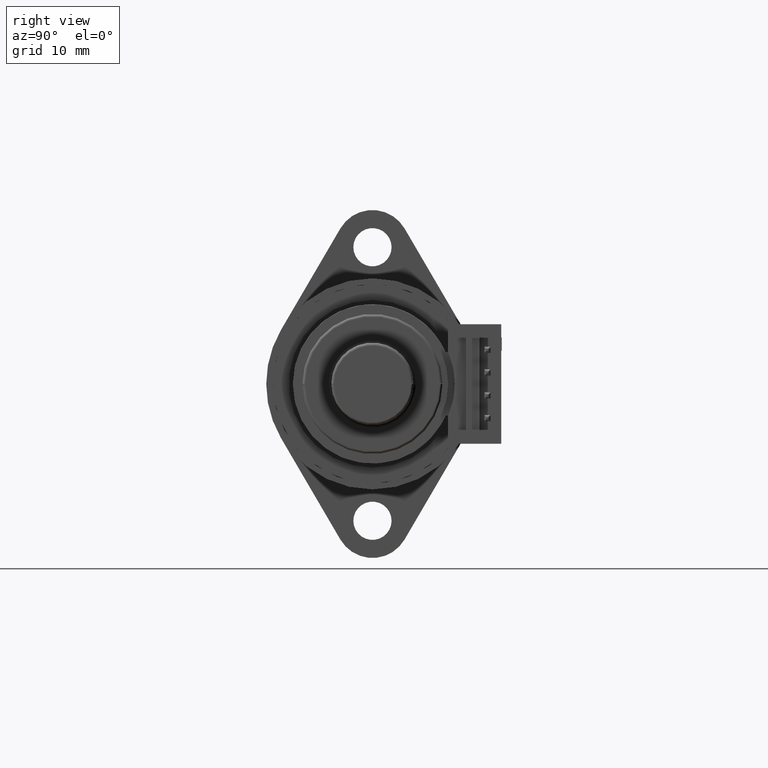
[diagram: clean part render]
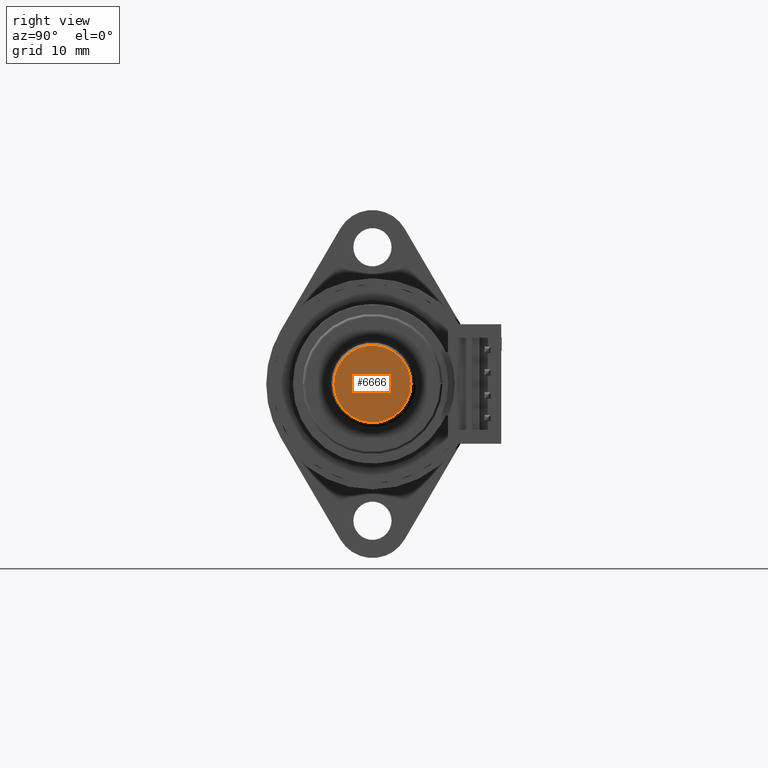
[diagram: same view with one face highlighted and labeled with its STEP entity id]
A machine part, right view. The second image highlights one B-rep face of the part: STEP entity #6666.
In plain terms, the highlighted planar face has unit normal (-1, 0, 0).
Its self-contained STEP definition (entity closure, byte-faithful):
#6301=CARTESIAN_POINT('',(0.E0,0.E0,0.E0));
#6302=DIRECTION('',(1.E0,0.E0,0.E0));
#6303=DIRECTION('',(0.E0,-9.999999786932E-1,2.064306523767E-4));
#6304=AXIS2_PLACEMENT_3D('',#6301,#6302,#6303);
#6321=CARTESIAN_POINT('',(0.E0,0.E0,0.E0));
#6322=DIRECTION('',(1.E0,0.E0,0.E0));
#6323=DIRECTION('',(0.E0,9.999998075460E-1,-6.204094764510E-4));
#6324=AXIS2_PLACEMENT_3D('',#6321,#6322,#6323);
#6331=CARTESIAN_POINT('',(0.E0,0.E0,0.E0));
#6332=DIRECTION('',(-1.E0,0.E0,0.E0));
#6333=DIRECTION('',(0.E0,9.999998075460E-1,-6.204094764510E-4));
#6334=AXIS2_PLACEMENT_3D('',#6331,#6332,#6333);
#6336=CARTESIAN_POINT('',(0.E0,0.E0,0.E0));
#6337=DIRECTION('',(-1.E0,0.E0,0.E0));
#6338=DIRECTION('',(0.E0,-9.999999786932E-1,2.064306523767E-4));
#6339=AXIS2_PLACEMENT_3D('',#6336,#6337,#6338);
#6395=CARTESIAN_POINT('',(0.E0,-1.45E-1,-7.856909567394E-14));
#6396=VERTEX_POINT('',#6395);
#6397=CARTESIAN_POINT('',(0.E0,-1.449915696727E-1,-1.563561266970E-3));
#6398=VERTEX_POINT('',#6397);
#6399=CARTESIAN_POINT('',(0.E0,1.449999720942E-1,-8.995937408540E-5));
#6400=VERTEX_POINT('',#6399);
#6401=CARTESIAN_POINT('',(0.E0,1.449915829536E-1,1.562329221243E-3));
#6402=VERTEX_POINT('',#6401);
#6655=CARTESIAN_POINT('',(0.E0,0.E0,0.E0));
#6656=DIRECTION('',(-1.E0,0.E0,0.E0));
#6657=DIRECTION('',(0.E0,1.E0,0.E0));
#6658=AXIS2_PLACEMENT_3D('',#6655,#6656,#6657);
#6659=PLANE('',#6658);
#6660=ORIENTED_EDGE('',*,*,#6632,.T.);
#6661=ORIENTED_EDGE('',*,*,#6630,.F.);
#6662=ORIENTED_EDGE('',*,*,#6649,.T.);
#6663=ORIENTED_EDGE('',*,*,#6647,.F.);
#6664=EDGE_LOOP('',(#6660,#6661,#6662,#6663));
#6665=FACE_OUTER_BOUND('',#6664,.F.);
#6666=ADVANCED_FACE('',(#6665),#6659,.F.);
#6305=CIRCLE('',#6304,1.45E-1);
#6325=CIRCLE('',#6324,1.45E-1);
#6335=CIRCLE('',#6334,1.45E-1);
#6340=CIRCLE('',#6339,1.45E-1);
#6630=EDGE_CURVE('',#6396,#6398,#6305,.T.);
#6632=EDGE_CURVE('',#6400,#6398,#6335,.T.);
#6647=EDGE_CURVE('',#6400,#6402,#6325,.T.);
#6649=EDGE_CURVE('',#6396,#6402,#6340,.T.);